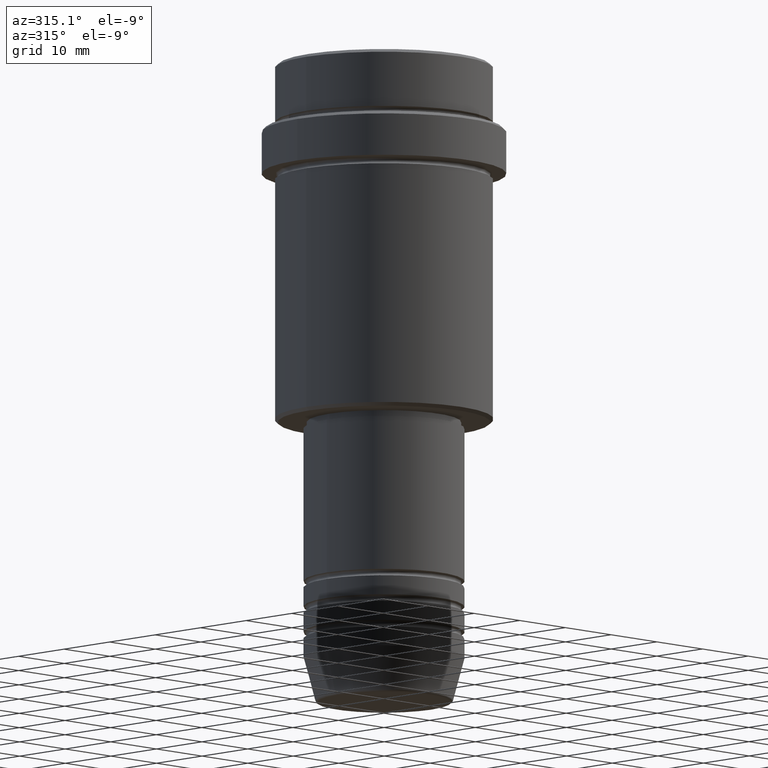
[diagram: clean part render]
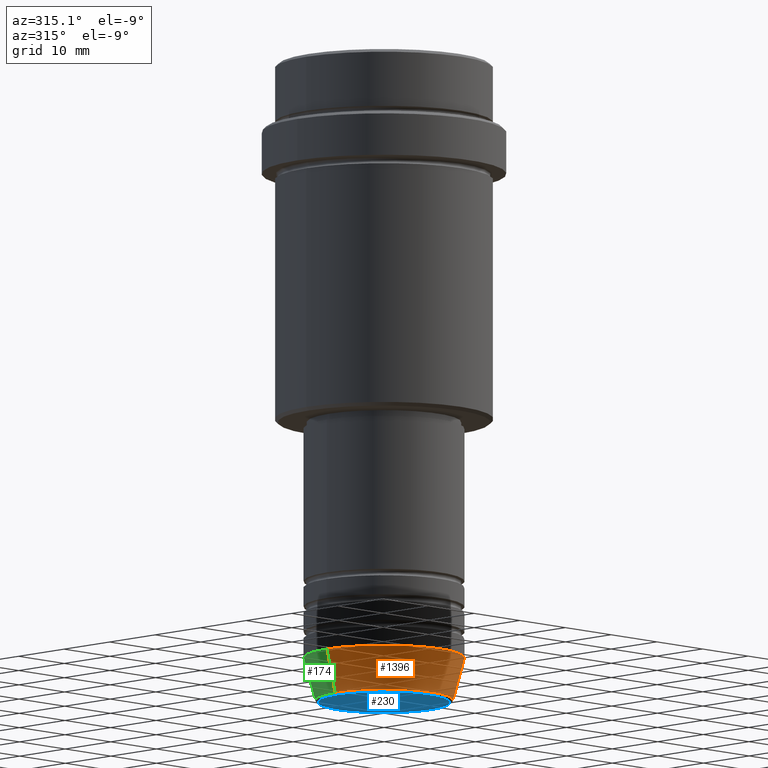
[diagram: same view with three faces highlighted in distinct colors, each labeled with its STEP entity id]
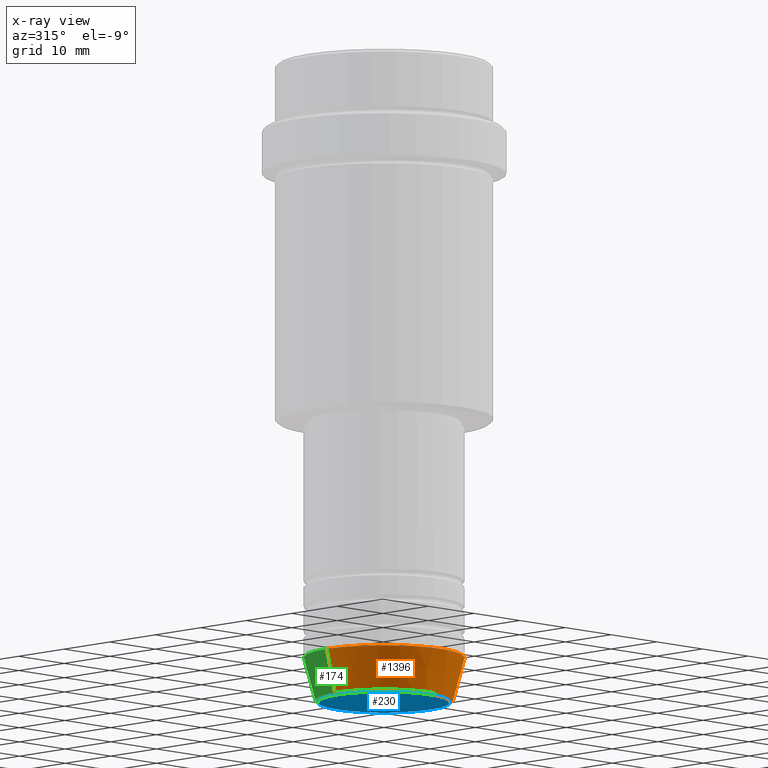
[diagram: x-ray of the same camera — body ghosted, the three highlighted faces saturated]
A machine part, auxiliary view with three faces highlighted in distinct colors.
The next image is the same camera in x-ray (body ghosted, the three faces saturated) — at least one of them is partly hidden behind the body in this view.
Their STEP definitions:

[orange] entity #1396 — the highlighted conical surface has half-angle 15 deg.
#24 = ORIENTED_EDGE ( 'NONE', *, *, #506, .F. ) ;
#28 = DIRECTION ( 'NONE',  ( 0.2588190451025213501, 0.000000000000000000, 0.9659258262890680902 ) ) ;
#71 = ORIENTED_EDGE ( 'NONE', *, *, #867, .F. ) ;
#208 = CARTESIAN_POINT ( 'NONE',  ( 0.000000000000000000, 0.000000000000000000, -99.62940952255127058 ) ) ;
#212 = EDGE_CURVE ( 'NONE', #227, #707, #888, .T. ) ;
#223 = VECTOR ( 'NONE', #28, 1000.000000000000000 ) ;
#227 = VERTEX_POINT ( 'NONE', #753 ) ;
#263 = DIRECTION ( 'NONE',  ( 1.000000000000000000, 0.000000000000000000, 0.000000000000000000 ) ) ;
#266 = AXIS2_PLACEMENT_3D ( 'NONE', #208, #859, #642 ) ;
#354 = CARTESIAN_POINT ( 'NONE',  ( 12.50000000000000000, 0.000000000000000000, -93.00000000000000000 ) ) ;
#360 = DIRECTION ( 'NONE',  ( -0.000000000000000000, -0.000000000000000000, 1.000000000000000000 ) ) ;
#393 = ORIENTED_EDGE ( 'NONE', *, *, #1213, .T. ) ;
#395 = FACE_OUTER_BOUND ( 'NONE', #1417, .T. ) ;
#400 = CARTESIAN_POINT ( 'NONE',  ( -12.50000000000000000, 1.530808498934191521E-15, -93.00000000000000000 ) ) ;
#410 = VERTEX_POINT ( 'NONE', #354 ) ;
#411 = LINE ( 'NONE', #400, #767 ) ;
#433 = CONICAL_SURFACE ( 'NONE', #1137, 12.50000000000000000, 0.2617993877991500740 ) ;
#461 = VERTEX_POINT ( 'NONE', #507 ) ;
#475 = CARTESIAN_POINT ( 'NONE',  ( 0.000000000000000000, 0.000000000000000000, -93.00000000000000000 ) ) ;
#485 = DIRECTION ( 'NONE',  ( 1.000000000000000000, 0.000000000000000000, 0.000000000000000000 ) ) ;
#506 = EDGE_CURVE ( 'NONE', #227, #461, #411, .T. ) ;
#507 = CARTESIAN_POINT ( 'NONE',  ( -12.50000000000000000, 1.530808498934191521E-15, -93.00000000000000000 ) ) ;
#510 = ORIENTED_EDGE ( 'NONE', *, *, #212, .T. ) ;
#521 = CIRCLE ( 'NONE', #633, 12.50000000000000000 ) ;
#633 = AXIS2_PLACEMENT_3D ( 'NONE', #475, #360, #485 ) ;
#642 = DIRECTION ( 'NONE',  ( 1.000000000000000000, 0.000000000000000000, 0.000000000000000000 ) ) ;
#707 = VERTEX_POINT ( 'NONE', #799 ) ;
#711 = DIRECTION ( 'NONE',  ( -0.000000000000000000, -0.000000000000000000, 1.000000000000000000 ) ) ;
#753 = CARTESIAN_POINT ( 'NONE',  ( -10.72365507213718416, 1.422038742429749727E-15, -99.62940952255127058 ) ) ;
#767 = VECTOR ( 'NONE', #828, 1000.000000000000000 ) ;
#799 = CARTESIAN_POINT ( 'NONE',  ( 10.72365507213718416, 0.000000000000000000, -99.62940952255127058 ) ) ;
#828 = DIRECTION ( 'NONE',  ( -0.2588190451025213501, 3.169619151431772337E-17, 0.9659258262890680902 ) ) ;
#837 = LINE ( 'NONE', #1220, #223 ) ;
#859 = DIRECTION ( 'NONE',  ( -0.000000000000000000, -0.000000000000000000, 1.000000000000000000 ) ) ;
#867 = EDGE_CURVE ( 'NONE', #461, #410, #521, .T. ) ;
#888 = CIRCLE ( 'NONE', #266, 10.72365507213718416 ) ;
#1137 = AXIS2_PLACEMENT_3D ( 'NONE', #1244, #711, #263 ) ;
#1213 = EDGE_CURVE ( 'NONE', #707, #410, #837, .T. ) ;
#1220 = CARTESIAN_POINT ( 'NONE',  ( 12.50000000000000000, 0.000000000000000000, -93.00000000000000000 ) ) ;
#1244 = CARTESIAN_POINT ( 'NONE',  ( 0.000000000000000000, 0.000000000000000000, -93.00000000000000000 ) ) ;
#1396 = ADVANCED_FACE ( 'NONE', ( #395 ), #433, .T. ) ;
#1417 = EDGE_LOOP ( 'NONE', ( #24, #510, #393, #71 ) ) ;

[blue] entity #230 — the highlighted planar face has unit normal (0, -0, 1).
#79 = DIRECTION ( 'NONE',  ( 0.000000000000000000, -0.000000000000000000, 1.000000000000000000 ) ) ;
#84 = AXIS2_PLACEMENT_3D ( 'NONE', #1022, #1268, #290 ) ;
#104 = AXIS2_PLACEMENT_3D ( 'NONE', #533, #1390, #511 ) ;
#201 = CARTESIAN_POINT ( 'NONE',  ( 0.000000000000000000, 0.000000000000000000, -100.0000000000000000 ) ) ;
#225 = ORIENTED_EDGE ( 'NONE', *, *, #494, .T. ) ;
#230 = ADVANCED_FACE ( 'NONE', ( #1081 ), #442, .F. ) ;
#237 = CARTESIAN_POINT ( 'NONE',  ( -10.24069215899265473, 1.283696036640841981E-15, -100.0000000000000000 ) ) ;
#290 = DIRECTION ( 'NONE',  ( 1.000000000000000000, 0.000000000000000000, 0.000000000000000000 ) ) ;
#297 = VERTEX_POINT ( 'NONE', #237 ) ;
#302 = VERTEX_POINT ( 'NONE', #1327 ) ;
#323 = EDGE_LOOP ( 'NONE', ( #225, #878 ) ) ;
#442 = PLANE ( 'NONE',  #862 ) ;
#477 = CIRCLE ( 'NONE', #84, 10.24069215899265473 ) ;
#494 = EDGE_CURVE ( 'NONE', #302, #297, #1384, .T. ) ;
#511 = DIRECTION ( 'NONE',  ( 1.000000000000000000, 0.000000000000000000, 0.000000000000000000 ) ) ;
#533 = CARTESIAN_POINT ( 'NONE',  ( 0.000000000000000000, 0.000000000000000000, -100.0000000000000000 ) ) ;
#849 = DIRECTION ( 'NONE',  ( 1.000000000000000000, 0.000000000000000000, 0.000000000000000000 ) ) ;
#862 = AXIS2_PLACEMENT_3D ( 'NONE', #201, #79, #849 ) ;
#878 = ORIENTED_EDGE ( 'NONE', *, *, #948, .T. ) ;
#948 = EDGE_CURVE ( 'NONE', #297, #302, #477, .T. ) ;
#1022 = CARTESIAN_POINT ( 'NONE',  ( 0.000000000000000000, 0.000000000000000000, -100.0000000000000000 ) ) ;
#1081 = FACE_OUTER_BOUND ( 'NONE', #323, .T. ) ;
#1268 = DIRECTION ( 'NONE',  ( 0.000000000000000000, 0.000000000000000000, -1.000000000000000000 ) ) ;
#1327 = CARTESIAN_POINT ( 'NONE',  ( 10.24069215899265473, 0.000000000000000000, -100.0000000000000000 ) ) ;
#1384 = CIRCLE ( 'NONE', #104, 10.24069215899265473 ) ;
#1390 = DIRECTION ( 'NONE',  ( 0.000000000000000000, 0.000000000000000000, -1.000000000000000000 ) ) ;

[green] entity #174 — the highlighted conical surface has half-angle 15 deg.
#1 = CARTESIAN_POINT ( 'NONE',  ( 0.000000000000000000, 0.000000000000000000, -93.00000000000000000 ) ) ;
#18 = DIRECTION ( 'NONE',  ( 1.000000000000000000, 0.000000000000000000, 0.000000000000000000 ) ) ;
#28 = DIRECTION ( 'NONE',  ( 0.2588190451025213501, 0.000000000000000000, 0.9659258262890680902 ) ) ;
#58 = CIRCLE ( 'NONE', #701, 10.72365507213718416 ) ;
#174 = ADVANCED_FACE ( 'NONE', ( #956 ), #660, .T. ) ;
#223 = VECTOR ( 'NONE', #28, 1000.000000000000000 ) ;
#227 = VERTEX_POINT ( 'NONE', #753 ) ;
#246 = AXIS2_PLACEMENT_3D ( 'NONE', #1373, #392, #708 ) ;
#354 = CARTESIAN_POINT ( 'NONE',  ( 12.50000000000000000, 0.000000000000000000, -93.00000000000000000 ) ) ;
#366 = CARTESIAN_POINT ( 'NONE',  ( 0.000000000000000000, 0.000000000000000000, -99.62940952255127058 ) ) ;
#392 = DIRECTION ( 'NONE',  ( -0.000000000000000000, -0.000000000000000000, 1.000000000000000000 ) ) ;
#400 = CARTESIAN_POINT ( 'NONE',  ( -12.50000000000000000, 1.530808498934191521E-15, -93.00000000000000000 ) ) ;
#410 = VERTEX_POINT ( 'NONE', #354 ) ;
#411 = LINE ( 'NONE', #400, #767 ) ;
#461 = VERTEX_POINT ( 'NONE', #507 ) ;
#506 = EDGE_CURVE ( 'NONE', #227, #461, #411, .T. ) ;
#507 = CARTESIAN_POINT ( 'NONE',  ( -12.50000000000000000, 1.530808498934191521E-15, -93.00000000000000000 ) ) ;
#582 = DIRECTION ( 'NONE',  ( -0.000000000000000000, -0.000000000000000000, 1.000000000000000000 ) ) ;
#660 = CONICAL_SURFACE ( 'NONE', #1321, 12.50000000000000000, 0.2617993877991500740 ) ;
#675 = ORIENTED_EDGE ( 'NONE', *, *, #1213, .F. ) ;
#701 = AXIS2_PLACEMENT_3D ( 'NONE', #366, #582, #18 ) ;
#704 = EDGE_CURVE ( 'NONE', #707, #227, #58, .T. ) ;
#707 = VERTEX_POINT ( 'NONE', #799 ) ;
#708 = DIRECTION ( 'NONE',  ( 1.000000000000000000, 0.000000000000000000, 0.000000000000000000 ) ) ;
#749 = ORIENTED_EDGE ( 'NONE', *, *, #506, .T. ) ;
#753 = CARTESIAN_POINT ( 'NONE',  ( -10.72365507213718416, 1.422038742429749727E-15, -99.62940952255127058 ) ) ;
#767 = VECTOR ( 'NONE', #828, 1000.000000000000000 ) ;
#799 = CARTESIAN_POINT ( 'NONE',  ( 10.72365507213718416, 0.000000000000000000, -99.62940952255127058 ) ) ;
#828 = DIRECTION ( 'NONE',  ( -0.2588190451025213501, 3.169619151431772337E-17, 0.9659258262890680902 ) ) ;
#834 = ORIENTED_EDGE ( 'NONE', *, *, #704, .T. ) ;
#837 = LINE ( 'NONE', #1220, #223 ) ;
#861 = CIRCLE ( 'NONE', #246, 12.50000000000000000 ) ;
#956 = FACE_OUTER_BOUND ( 'NONE', #1375, .T. ) ;
#962 = DIRECTION ( 'NONE',  ( -0.000000000000000000, -0.000000000000000000, 1.000000000000000000 ) ) ;
#1054 = EDGE_CURVE ( 'NONE', #410, #461, #861, .T. ) ;
#1079 = ORIENTED_EDGE ( 'NONE', *, *, #1054, .F. ) ;
#1168 = DIRECTION ( 'NONE',  ( 1.000000000000000000, 0.000000000000000000, 0.000000000000000000 ) ) ;
#1213 = EDGE_CURVE ( 'NONE', #707, #410, #837, .T. ) ;
#1220 = CARTESIAN_POINT ( 'NONE',  ( 12.50000000000000000, 0.000000000000000000, -93.00000000000000000 ) ) ;
#1321 = AXIS2_PLACEMENT_3D ( 'NONE', #1, #962, #1168 ) ;
#1373 = CARTESIAN_POINT ( 'NONE',  ( 0.000000000000000000, 0.000000000000000000, -93.00000000000000000 ) ) ;
#1375 = EDGE_LOOP ( 'NONE', ( #834, #749, #1079, #675 ) ) ;